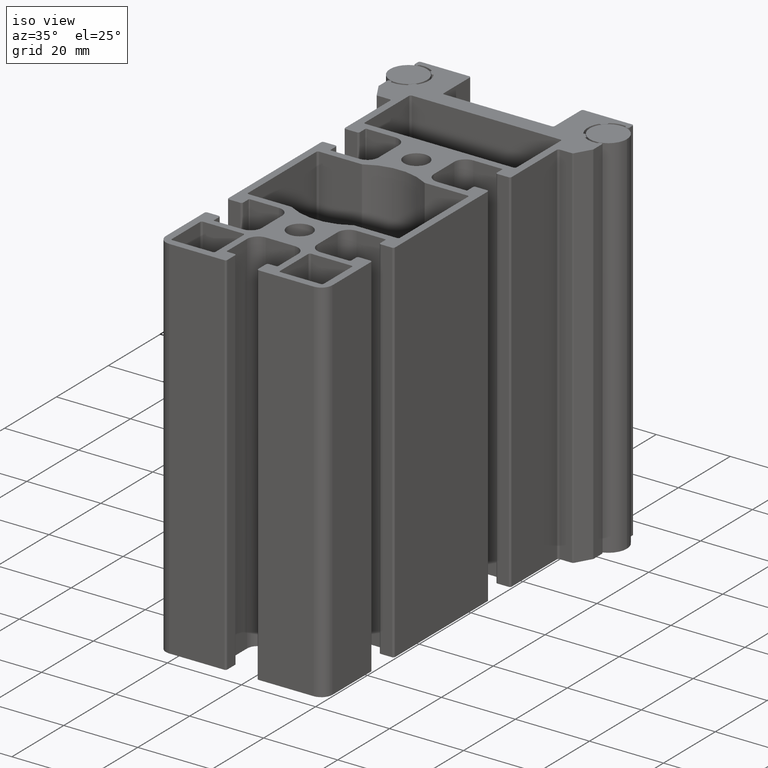
[diagram: clean part render]
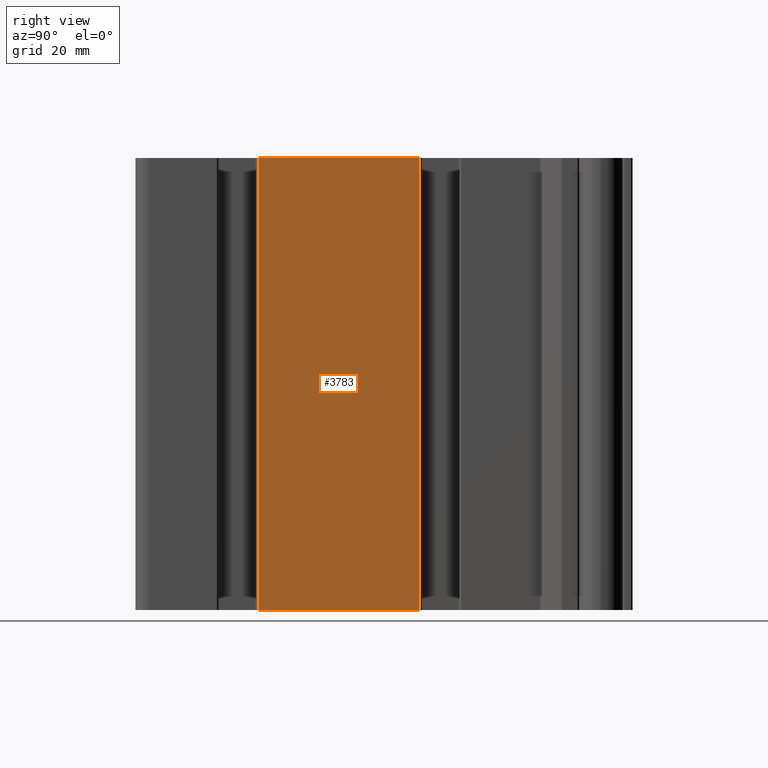
[diagram: tour spotlight — one face highlighted and labeled with its STEP entity id]
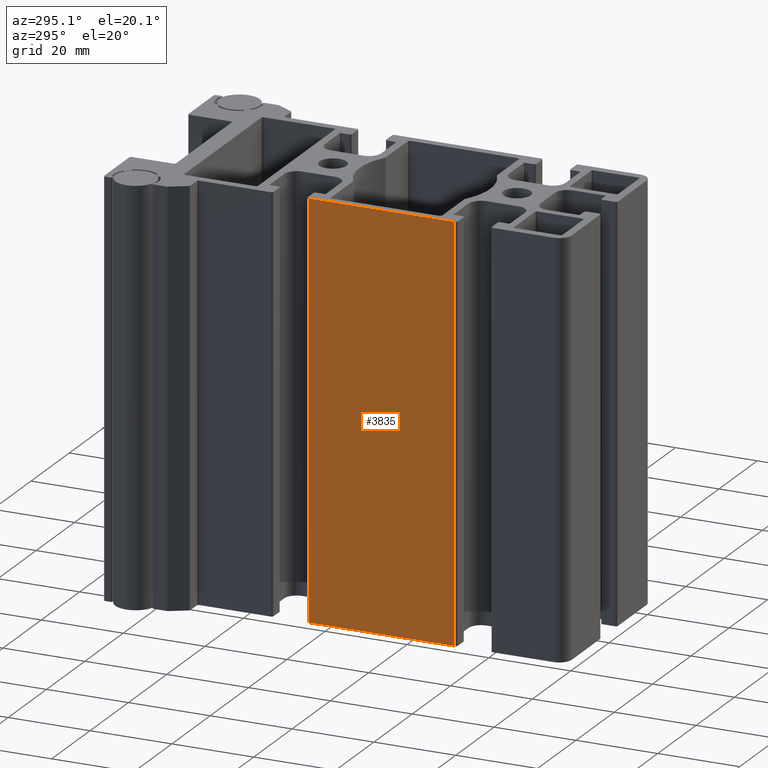
[diagram: tour spotlight — one face highlighted and labeled with its STEP entity id]
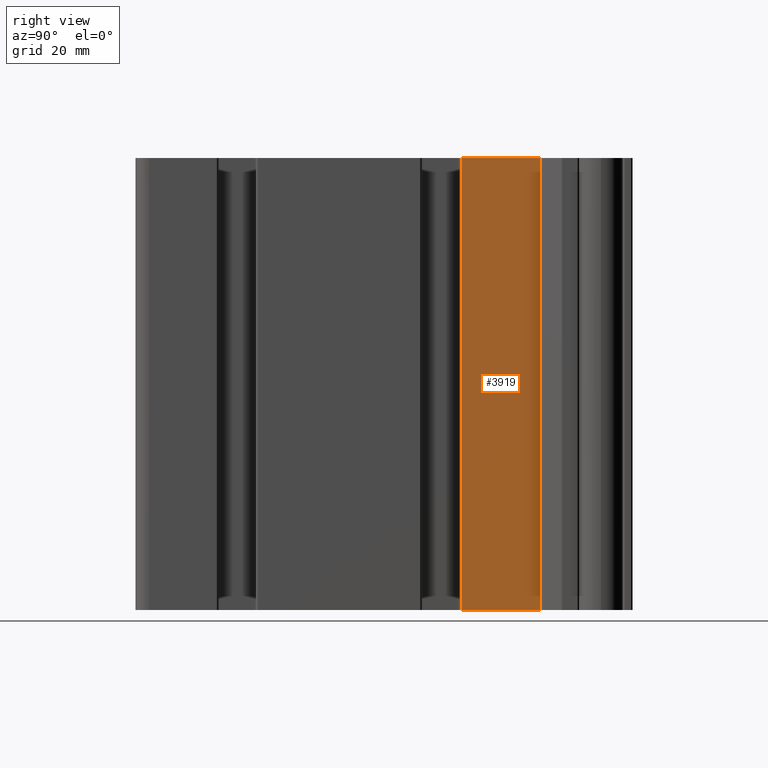
[diagram: tour spotlight — one face highlighted and labeled with its STEP entity id]
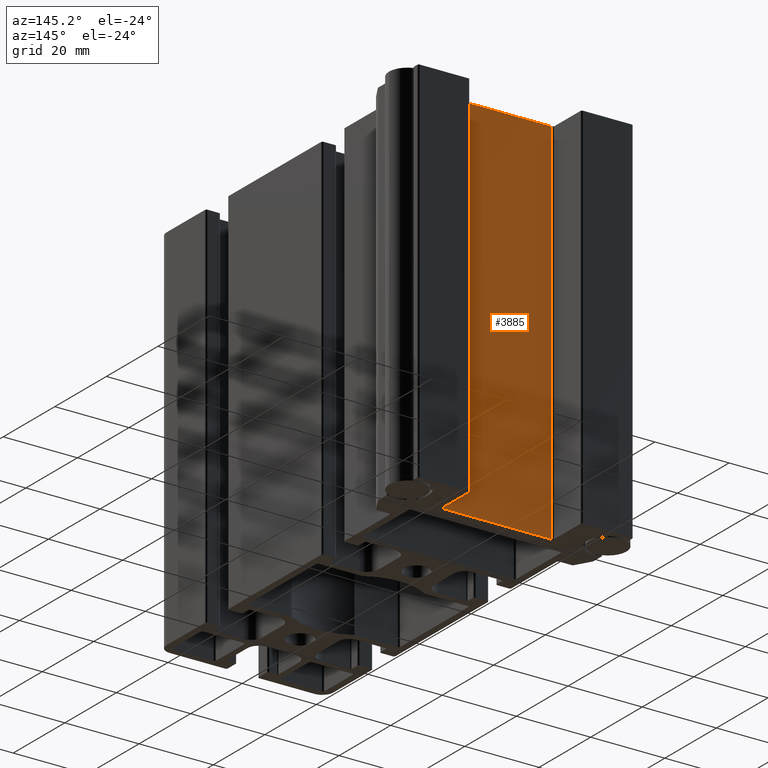
[diagram: tour spotlight — one face highlighted and labeled with its STEP entity id]
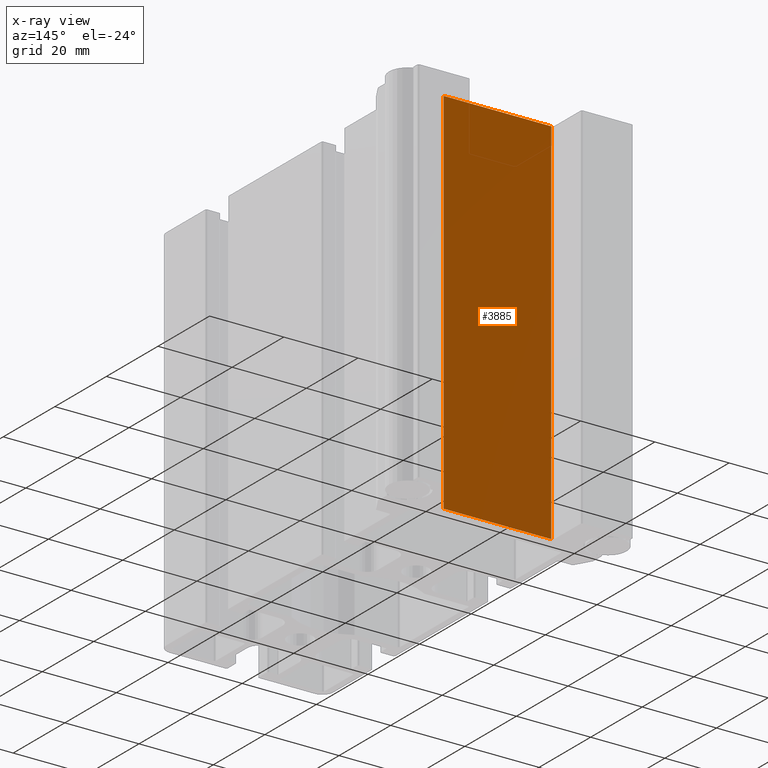
[diagram: x-ray of the same camera — body ghosted, this tour face saturated]
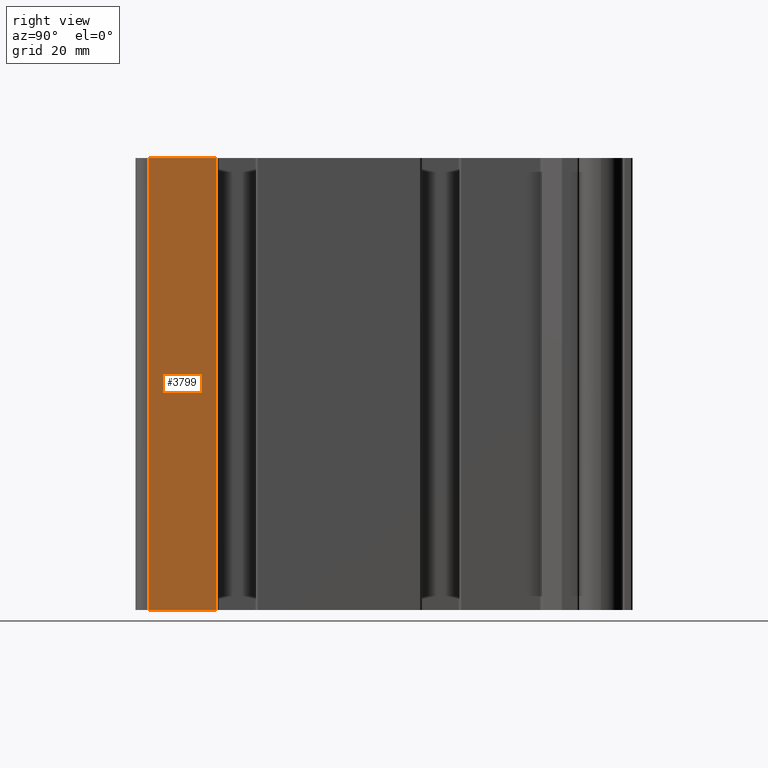
[diagram: tour spotlight — one face highlighted and labeled with its STEP entity id]
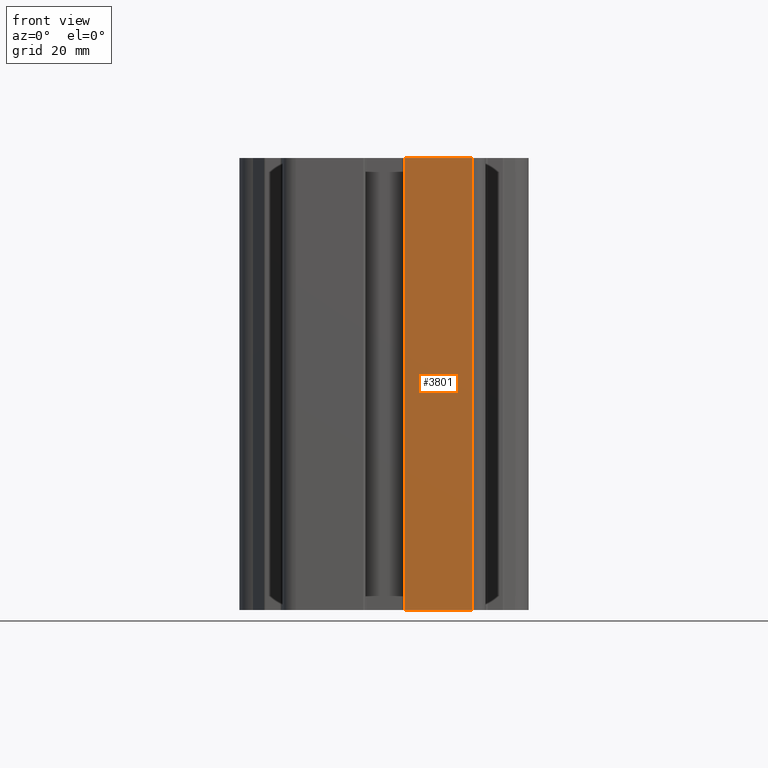
[diagram: tour spotlight — one face highlighted and labeled with its STEP entity id]
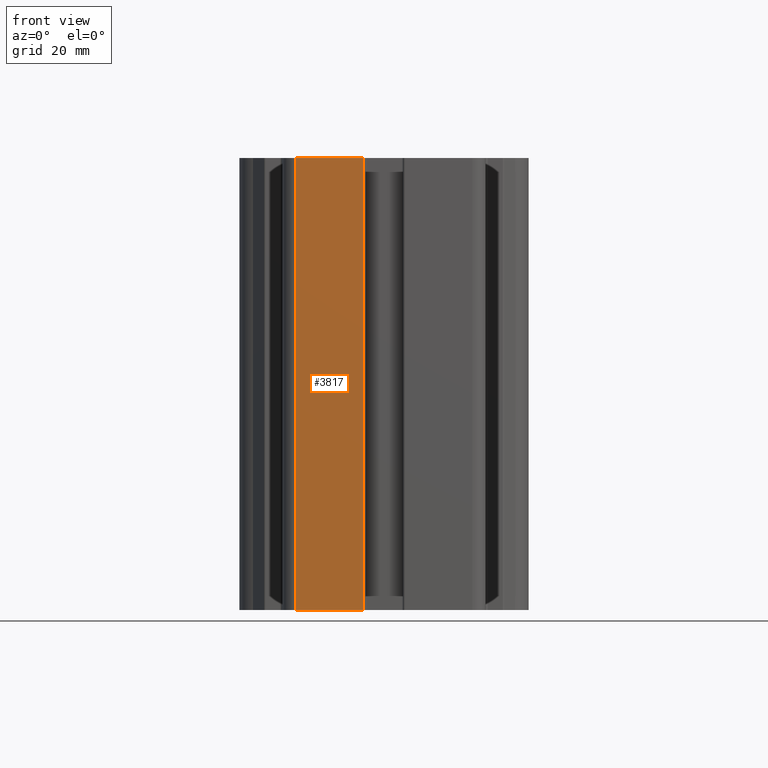
[diagram: tour spotlight — one face highlighted and labeled with its STEP entity id]
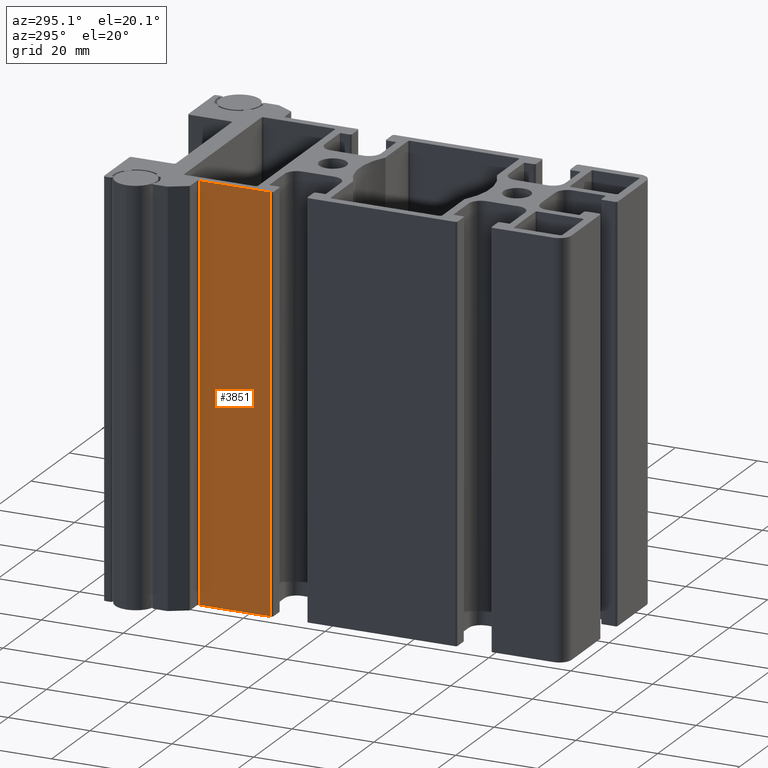
[diagram: tour spotlight — one face highlighted and labeled with its STEP entity id]
A machine part: a face-by-face anatomy tour. The part has 202 B-rep faces; the first image is the clean iso view, then the 8 largest visible faces are spotlighted one at a time (largest first), each with its STEP entity span.

Face 1 — right view, entity #3783. In plain terms, the highlighted planar face has unit normal (1, 0, 0).
Definition (entity closure, byte-faithful):
#69=PLANE('',#4200);
#179=FACE_OUTER_BOUND('',#384,.T.);
#384=EDGE_LOOP('',(#2856,#2857,#2858,#2859));
#859=LINE('',#5961,#1202);
#929=LINE('',#6292,#1272);
#930=LINE('',#6295,#1273);
#931=LINE('',#6296,#1274);
#1202=VECTOR('',#4723,10.);
#1272=VECTOR('',#5015,10.);
#1273=VECTOR('',#5018,10.);
#1274=VECTOR('',#5019,10.);
#1559=VERTEX_POINT('',#5958);
#1560=VERTEX_POINT('',#5960);
#1710=VERTEX_POINT('',#6290);
#1711=VERTEX_POINT('',#6294);
#1991=EDGE_CURVE('',#1559,#1560,#859,.T.);
#2157=EDGE_CURVE('',#1710,#1559,#929,.T.);
#2158=EDGE_CURVE('',#1711,#1710,#930,.T.);
#2159=EDGE_CURVE('',#1711,#1560,#931,.T.);
#2856=ORIENTED_EDGE('',*,*,#2157,.F.);
#2857=ORIENTED_EDGE('',*,*,#2158,.F.);
#2858=ORIENTED_EDGE('',*,*,#2159,.T.);
#2859=ORIENTED_EDGE('',*,*,#1991,.F.);
#3783=ADVANCED_FACE('',(#179),#69,.T.);
#4200=AXIS2_PLACEMENT_3D('',#6293,#5016,#5017);
#4723=DIRECTION('',(0.,-1.,0.));
#5015=DIRECTION('',(0.,0.,-1.));
#5016=DIRECTION('center_axis',(1.,0.,0.));
#5017=DIRECTION('ref_axis',(0.,1.,0.));
#5018=DIRECTION('',(0.,1.,0.));
#5019=DIRECTION('',(0.,0.,-1.));
#5958=CARTESIAN_POINT('',(22.5000008485453,62.8500003702041,-50.));
#5960=CARTESIAN_POINT('',(22.5000008485453,27.1500003936015,-50.));
#5961=CARTESIAN_POINT('',(22.5000008485453,62.8500003702041,-50.));
#6290=CARTESIAN_POINT('',(22.5000008485453,62.8500003702041,50.));
#6292=CARTESIAN_POINT('',(22.5000008485453,62.8500003702041,0.));
#6293=CARTESIAN_POINT('Origin',(22.5000008485453,27.1500003936015,0.));
#6294=CARTESIAN_POINT('',(22.5000008485453,27.1500003936015,50.));
#6295=CARTESIAN_POINT('',(22.5000008485453,62.8500003702041,50.));
#6296=CARTESIAN_POINT('',(22.5000008485453,27.1500003936015,0.));

Face 2 — auxiliary view, entity #3835. In plain terms, the highlighted planar face has unit normal (-1, 0, 0).
Definition (entity closure, byte-faithful):
#95=PLANE('',#4278);
#231=FACE_OUTER_BOUND('',#436,.T.);
#436=EDGE_LOOP('',(#3064,#3065,#3066,#3067));
#885=LINE('',#6065,#1228);
#1007=LINE('',#6500,#1350);
#1008=LINE('',#6503,#1351);
#1009=LINE('',#6504,#1352);
#1228=VECTOR('',#4801,10.);
#1350=VECTOR('',#5249,10.);
#1351=VECTOR('',#5252,10.);
#1352=VECTOR('',#5253,10.);
#1611=VERTEX_POINT('',#6062);
#1612=VERTEX_POINT('',#6064);
#1762=VERTEX_POINT('',#6498);
#1763=VERTEX_POINT('',#6502);
#2043=EDGE_CURVE('',#1611,#1612,#885,.T.);
#2261=EDGE_CURVE('',#1762,#1611,#1007,.T.);
#2262=EDGE_CURVE('',#1763,#1762,#1008,.T.);
#2263=EDGE_CURVE('',#1763,#1612,#1009,.T.);
#3064=ORIENTED_EDGE('',*,*,#2261,.F.);
#3065=ORIENTED_EDGE('',*,*,#2262,.F.);
#3066=ORIENTED_EDGE('',*,*,#2263,.T.);
#3067=ORIENTED_EDGE('',*,*,#2043,.F.);
#3835=ADVANCED_FACE('',(#231),#95,.T.);
#4278=AXIS2_PLACEMENT_3D('',#6501,#5250,#5251);
#4801=DIRECTION('',(0.,1.,0.));
#5249=DIRECTION('',(0.,0.,-1.));
#5250=DIRECTION('center_axis',(-1.,0.,0.));
#5251=DIRECTION('ref_axis',(0.,-1.,0.));
#5252=DIRECTION('',(0.,-1.,0.));
#5253=DIRECTION('',(0.,0.,-1.));
#6062=CARTESIAN_POINT('',(-22.500000632276,27.1500003936015,-50.));
#6064=CARTESIAN_POINT('',(-22.500000632276,62.8500003702041,-50.));
#6065=CARTESIAN_POINT('',(-22.500000632276,27.1500003936015,-50.));
#6498=CARTESIAN_POINT('',(-22.500000632276,27.1500003936015,50.));
#6500=CARTESIAN_POINT('',(-22.500000632276,27.1500003936015,0.));
#6501=CARTESIAN_POINT('Origin',(-22.500000632276,62.8500003702041,0.));
#6502=CARTESIAN_POINT('',(-22.500000632276,62.8500003702041,50.));
#6503=CARTESIAN_POINT('',(-22.500000632276,27.1500003936015,50.));
#6504=CARTESIAN_POINT('',(-22.500000632276,62.8500003702041,0.));

Face 3 — right view, entity #3919. In plain terms, the highlighted planar face has unit normal (1, 0, 0).
Definition (entity closure, byte-faithful):
#117=PLANE('',#4424);
#315=FACE_OUTER_BOUND('',#520,.T.);
#520=EDGE_LOOP('',(#3400,#3401,#3402,#3403));
#851=LINE('',#5929,#1194);
#907=LINE('',#6233,#1250);
#1113=LINE('',#6836,#1456);
#1114=LINE('',#6838,#1457);
#1194=VECTOR('',#4699,10.);
#1250=VECTOR('',#4949,10.);
#1456=VECTOR('',#5647,10.);
#1457=VECTOR('',#5650,10.);
#1543=VERTEX_POINT('',#5927);
#1544=VERTEX_POINT('',#5928);
#1695=VERTEX_POINT('',#6232);
#1846=VERTEX_POINT('',#6834);
#1975=EDGE_CURVE('',#1543,#1544,#851,.T.);
#2127=EDGE_CURVE('',#1695,#1544,#907,.T.);
#2429=EDGE_CURVE('',#1543,#1846,#1113,.T.);
#2430=EDGE_CURVE('',#1695,#1846,#1114,.T.);
#3400=ORIENTED_EDGE('',*,*,#2429,.T.);
#3401=ORIENTED_EDGE('',*,*,#2430,.F.);
#3402=ORIENTED_EDGE('',*,*,#2127,.T.);
#3403=ORIENTED_EDGE('',*,*,#1975,.F.);
#3919=ADVANCED_FACE('',(#315),#117,.T.);
#4424=AXIS2_PLACEMENT_3D('',#6837,#5648,#5649);
#4699=DIRECTION('',(0.,-1.,0.));
#4949=DIRECTION('',(0.,0.,-1.));
#5647=DIRECTION('',(0.,0.,1.));
#5648=DIRECTION('center_axis',(1.,0.,0.));
#5649=DIRECTION('ref_axis',(0.,1.,0.));
#5650=DIRECTION('',(0.,1.,0.));
#5927=CARTESIAN_POINT('',(22.5000008485453,89.500000430488,-50.));
#5928=CARTESIAN_POINT('',(22.5000008485453,72.1500004538832,-50.));
#5929=CARTESIAN_POINT('',(22.5000008485453,89.500000430488,-50.));
#6232=CARTESIAN_POINT('',(22.5000008485453,72.1500004538832,50.));
#6233=CARTESIAN_POINT('',(22.5000008485453,72.1500004538832,0.));
#6834=CARTESIAN_POINT('',(22.5000008485453,89.500000430488,50.));
#6836=CARTESIAN_POINT('',(22.5000008485453,89.500000430488,0.));
#6837=CARTESIAN_POINT('Origin',(22.5000008485453,72.1500004538832,0.));
#6838=CARTESIAN_POINT('',(22.5000008485453,89.500000430488,50.));

Face 4 — auxiliary view, entity #3885. An x-ray twin of the same camera follows (body ghosted, this face saturated) — the face is partly hidden behind the body. In plain terms, the highlighted planar face has unit normal (0, 1, 0).
Definition (entity closure, byte-faithful):
#110=PLANE('',#4363);
#281=FACE_OUTER_BOUND('',#486,.T.);
#486=EDGE_LOOP('',(#3264,#3265,#3266,#3267));
#900=LINE('',#6165,#1243);
#1072=LINE('',#6700,#1415);
#1073=LINE('',#6703,#1416);
#1074=LINE('',#6704,#1417);
#1243=VECTOR('',#4886,10.);
#1415=VECTOR('',#5484,10.);
#1416=VECTOR('',#5487,10.);
#1417=VECTOR('',#5488,10.);
#1661=VERTEX_POINT('',#6162);
#1662=VERTEX_POINT('',#6164);
#1812=VERTEX_POINT('',#6698);
#1813=VERTEX_POINT('',#6702);
#2093=EDGE_CURVE('',#1661,#1662,#900,.T.);
#2361=EDGE_CURVE('',#1812,#1661,#1072,.T.);
#2362=EDGE_CURVE('',#1813,#1812,#1073,.T.);
#2363=EDGE_CURVE('',#1813,#1662,#1074,.T.);
#3264=ORIENTED_EDGE('',*,*,#2361,.F.);
#3265=ORIENTED_EDGE('',*,*,#2362,.F.);
#3266=ORIENTED_EDGE('',*,*,#2363,.T.);
#3267=ORIENTED_EDGE('',*,*,#2093,.F.);
#3885=ADVANCED_FACE('',(#281),#110,.T.);
#4363=AXIS2_PLACEMENT_3D('',#6701,#5485,#5486);
#4886=DIRECTION('',(1.,0.,0.));
#5484=DIRECTION('',(0.,0.,-1.));
#5485=DIRECTION('center_axis',(0.,1.,0.));
#5486=DIRECTION('ref_axis',(-1.,0.,0.));
#5487=DIRECTION('',(-1.,0.,0.));
#5488=DIRECTION('',(0.,0.,-1.));
#6162=CARTESIAN_POINT('',(-14.5,98.9999999999975,-50.));
#6164=CARTESIAN_POINT('',(14.5,98.9999999999975,-50.));
#6165=CARTESIAN_POINT('',(-14.5,98.9999999999975,-50.));
#6698=CARTESIAN_POINT('',(-14.5,98.9999999999975,50.));
#6700=CARTESIAN_POINT('',(-14.5,98.9999999999975,0.));
#6701=CARTESIAN_POINT('Origin',(14.5,98.9999999999975,0.));
#6702=CARTESIAN_POINT('',(14.5,98.9999999999975,50.));
#6703=CARTESIAN_POINT('',(-14.5,98.9999999999975,50.));
#6704=CARTESIAN_POINT('',(14.5,98.9999999999975,0.));

Face 5 — right view, entity #3799. In plain terms, the highlighted planar face has unit normal (1, 0, 0).
Definition (entity closure, byte-faithful):
#77=PLANE('',#4224);
#195=FACE_OUTER_BOUND('',#400,.T.);
#400=EDGE_LOOP('',(#2920,#2921,#2922,#2923));
#867=LINE('',#5993,#1210);
#953=LINE('',#6356,#1296);
#954=LINE('',#6359,#1297);
#955=LINE('',#6360,#1298);
#1210=VECTOR('',#4747,10.);
#1296=VECTOR('',#5087,10.);
#1297=VECTOR('',#5090,10.);
#1298=VECTOR('',#5091,10.);
#1575=VERTEX_POINT('',#5990);
#1576=VERTEX_POINT('',#5992);
#1726=VERTEX_POINT('',#6354);
#1727=VERTEX_POINT('',#6358);
#2007=EDGE_CURVE('',#1575,#1576,#867,.T.);
#2189=EDGE_CURVE('',#1726,#1575,#953,.T.);
#2190=EDGE_CURVE('',#1727,#1726,#954,.T.);
#2191=EDGE_CURVE('',#1727,#1576,#955,.T.);
#2920=ORIENTED_EDGE('',*,*,#2189,.F.);
#2921=ORIENTED_EDGE('',*,*,#2190,.F.);
#2922=ORIENTED_EDGE('',*,*,#2191,.T.);
#2923=ORIENTED_EDGE('',*,*,#2007,.F.);
#3799=ADVANCED_FACE('',(#195),#77,.T.);
#4224=AXIS2_PLACEMENT_3D('',#6357,#5088,#5089);
#4747=DIRECTION('',(2.99049965036641E-16,-1.,0.));
#5087=DIRECTION('',(0.,0.,-1.));
#5088=DIRECTION('center_axis',(1.,2.99049965036641E-16,0.));
#5089=DIRECTION('ref_axis',(-2.99049965036641E-16,1.,0.));
#5090=DIRECTION('',(-2.99049965036641E-16,1.,0.));
#5091=DIRECTION('',(0.,0.,-1.));
#5990=CARTESIAN_POINT('',(22.5000008485453,17.8500003936015,-50.));
#5992=CARTESIAN_POINT('',(22.5000008485453,3.00000000000001,-50.));
#5993=CARTESIAN_POINT('',(22.5000008485453,17.8500003936015,-50.));
#6354=CARTESIAN_POINT('',(22.5000008485453,17.8500003936015,50.));
#6356=CARTESIAN_POINT('',(22.5000008485453,17.8500003936015,0.));
#6357=CARTESIAN_POINT('Origin',(22.5000008485453,3.,0.));
#6358=CARTESIAN_POINT('',(22.5000008485453,3.00000000000001,50.));
#6359=CARTESIAN_POINT('',(22.5000008485453,17.8500003936015,50.));
#6360=CARTESIAN_POINT('',(22.5000008485453,3.,0.));

Face 6 — front view, entity #3801. In plain terms, the highlighted planar face has unit normal (0, -1, 0).
Definition (entity closure, byte-faithful):
#78=PLANE('',#4227);
#197=FACE_OUTER_BOUND('',#402,.T.);
#402=EDGE_LOOP('',(#2928,#2929,#2930,#2931));
#868=LINE('',#5997,#1211);
#956=LINE('',#6364,#1299);
#957=LINE('',#6367,#1300);
#958=LINE('',#6368,#1301);
#1211=VECTOR('',#4750,10.);
#1299=VECTOR('',#5096,10.);
#1300=VECTOR('',#5099,10.);
#1301=VECTOR('',#5100,10.);
#1577=VERTEX_POINT('',#5994);
#1578=VERTEX_POINT('',#5996);
#1728=VERTEX_POINT('',#6362);
#1729=VERTEX_POINT('',#6366);
#2009=EDGE_CURVE('',#1577,#1578,#868,.T.);
#2193=EDGE_CURVE('',#1728,#1577,#956,.T.);
#2194=EDGE_CURVE('',#1729,#1728,#957,.T.);
#2195=EDGE_CURVE('',#1729,#1578,#958,.T.);
#2928=ORIENTED_EDGE('',*,*,#2193,.F.);
#2929=ORIENTED_EDGE('',*,*,#2194,.F.);
#2930=ORIENTED_EDGE('',*,*,#2195,.T.);
#2931=ORIENTED_EDGE('',*,*,#2009,.F.);
#3801=ADVANCED_FACE('',(#197),#78,.T.);
#4227=AXIS2_PLACEMENT_3D('',#6365,#5097,#5098);
#4750=DIRECTION('',(-1.,-1.0182273366486E-16,0.));
#5096=DIRECTION('',(0.,0.,-1.));
#5097=DIRECTION('center_axis',(1.0182273366486E-16,-1.,0.));
#5098=DIRECTION('ref_axis',(1.,1.0182273366486E-16,0.));
#5099=DIRECTION('',(1.,1.0182273366486E-16,0.));
#5100=DIRECTION('',(0.,0.,-1.));
#5994=CARTESIAN_POINT('',(19.5000008485453,0.,-50.));
#5996=CARTESIAN_POINT('',(4.64999883050916,0.,-50.));
#5997=CARTESIAN_POINT('',(19.5000008485453,-1.74480867397682E-15,-50.));
#6362=CARTESIAN_POINT('',(19.5000008485453,0.,50.));
#6364=CARTESIAN_POINT('',(19.5000008485453,-1.74480867397682E-15,0.));
#6365=CARTESIAN_POINT('Origin',(4.64999883050916,-3.25687647438194E-15,
0.));
#6366=CARTESIAN_POINT('',(4.64999883050916,0.,50.));
#6367=CARTESIAN_POINT('',(19.5000008485453,-1.74480867397682E-15,50.));
#6368=CARTESIAN_POINT('',(4.64999883050916,-3.25687647438194E-15,0.));

Face 7 — front view, entity #3817. In plain terms, the highlighted planar face has unit normal (0, -1, 0).
Definition (entity closure, byte-faithful):
#86=PLANE('',#4251);
#213=FACE_OUTER_BOUND('',#418,.T.);
#418=EDGE_LOOP('',(#2992,#2993,#2994,#2995));
#876=LINE('',#6029,#1219);
#980=LINE('',#6428,#1323);
#981=LINE('',#6431,#1324);
#982=LINE('',#6432,#1325);
#1219=VECTOR('',#4774,10.);
#1323=VECTOR('',#5168,10.);
#1324=VECTOR('',#5171,10.);
#1325=VECTOR('',#5172,10.);
#1593=VERTEX_POINT('',#6026);
#1594=VERTEX_POINT('',#6028);
#1744=VERTEX_POINT('',#6426);
#1745=VERTEX_POINT('',#6430);
#2025=EDGE_CURVE('',#1593,#1594,#876,.T.);
#2225=EDGE_CURVE('',#1744,#1593,#980,.T.);
#2226=EDGE_CURVE('',#1745,#1744,#981,.T.);
#2227=EDGE_CURVE('',#1745,#1594,#982,.T.);
#2992=ORIENTED_EDGE('',*,*,#2225,.F.);
#2993=ORIENTED_EDGE('',*,*,#2226,.F.);
#2994=ORIENTED_EDGE('',*,*,#2227,.T.);
#2995=ORIENTED_EDGE('',*,*,#2025,.F.);
#3817=ADVANCED_FACE('',(#213),#86,.T.);
#4251=AXIS2_PLACEMENT_3D('',#6429,#5169,#5170);
#4774=DIRECTION('',(-1.,-2.51347801087356E-16,0.));
#5168=DIRECTION('',(0.,0.,-1.));
#5169=DIRECTION('center_axis',(2.51347801087356E-16,-1.,0.));
#5170=DIRECTION('ref_axis',(1.,2.51347801087356E-16,0.));
#5171=DIRECTION('',(1.,2.51347801087356E-16,0.));
#5172=DIRECTION('',(0.,0.,-1.));
#6026=CARTESIAN_POINT('',(-4.65000116955444,0.,-50.));
#6028=CARTESIAN_POINT('',(-19.500000632276,-1.77635683940025E-14,-50.));
#6029=CARTESIAN_POINT('',(-4.65000116955444,-8.77929311076312E-15,-50.));
#6426=CARTESIAN_POINT('',(-4.65000116955444,0.,50.));
#6428=CARTESIAN_POINT('',(-4.65000116955444,-8.77929311076312E-15,0.));
#6429=CARTESIAN_POINT('Origin',(-19.500000632276,-1.25118078218666E-14,
0.));
#6430=CARTESIAN_POINT('',(-19.500000632276,-1.77635683940025E-14,50.));
#6431=CARTESIAN_POINT('',(-4.65000116955444,-8.77929311076312E-15,50.));
#6432=CARTESIAN_POINT('',(-19.500000632276,-1.25118078218666E-14,0.));

Face 8 — auxiliary view, entity #3851. In plain terms, the highlighted planar face has unit normal (-1, 0, 0).
Definition (entity closure, byte-faithful):
#103=PLANE('',#4302);
#247=FACE_OUTER_BOUND('',#452,.T.);
#452=EDGE_LOOP('',(#3128,#3129,#3130,#3131));
#893=LINE('',#6097,#1236);
#1031=LINE('',#6564,#1374);
#1032=LINE('',#6567,#1375);
#1033=LINE('',#6568,#1376);
#1236=VECTOR('',#4825,10.);
#1374=VECTOR('',#5321,10.);
#1375=VECTOR('',#5324,10.);
#1376=VECTOR('',#5325,10.);
#1627=VERTEX_POINT('',#6094);
#1628=VERTEX_POINT('',#6096);
#1778=VERTEX_POINT('',#6562);
#1779=VERTEX_POINT('',#6566);
#2059=EDGE_CURVE('',#1627,#1628,#893,.T.);
#2293=EDGE_CURVE('',#1778,#1627,#1031,.T.);
#2294=EDGE_CURVE('',#1779,#1778,#1032,.T.);
#2295=EDGE_CURVE('',#1779,#1628,#1033,.T.);
#3128=ORIENTED_EDGE('',*,*,#2293,.F.);
#3129=ORIENTED_EDGE('',*,*,#2294,.F.);
#3130=ORIENTED_EDGE('',*,*,#2295,.T.);
#3131=ORIENTED_EDGE('',*,*,#2059,.F.);
#3851=ADVANCED_FACE('',(#247),#103,.T.);
#4302=AXIS2_PLACEMENT_3D('',#6565,#5322,#5323);
#4825=DIRECTION('',(0.,1.,0.));
#5321=DIRECTION('',(0.,0.,-1.));
#5322=DIRECTION('center_axis',(-1.,0.,0.));
#5323=DIRECTION('ref_axis',(0.,-1.,0.));
#5324=DIRECTION('',(0.,-1.,0.));
#5325=DIRECTION('',(0.,0.,-1.));
#6094=CARTESIAN_POINT('',(-22.500000632276,72.1500004538832,-50.));
#6096=CARTESIAN_POINT('',(-22.500000632276,89.500000430488,-50.));
#6097=CARTESIAN_POINT('',(-22.500000632276,72.1500004538832,-50.));
#6562=CARTESIAN_POINT('',(-22.500000632276,72.1500004538832,50.));
#6564=CARTESIAN_POINT('',(-22.500000632276,72.1500004538832,0.));
#6565=CARTESIAN_POINT('Origin',(-22.500000632276,89.500000430488,0.));
#6566=CARTESIAN_POINT('',(-22.500000632276,89.500000430488,50.));
#6567=CARTESIAN_POINT('',(-22.500000632276,72.1500004538832,50.));
#6568=CARTESIAN_POINT('',(-22.500000632276,89.500000430488,0.));